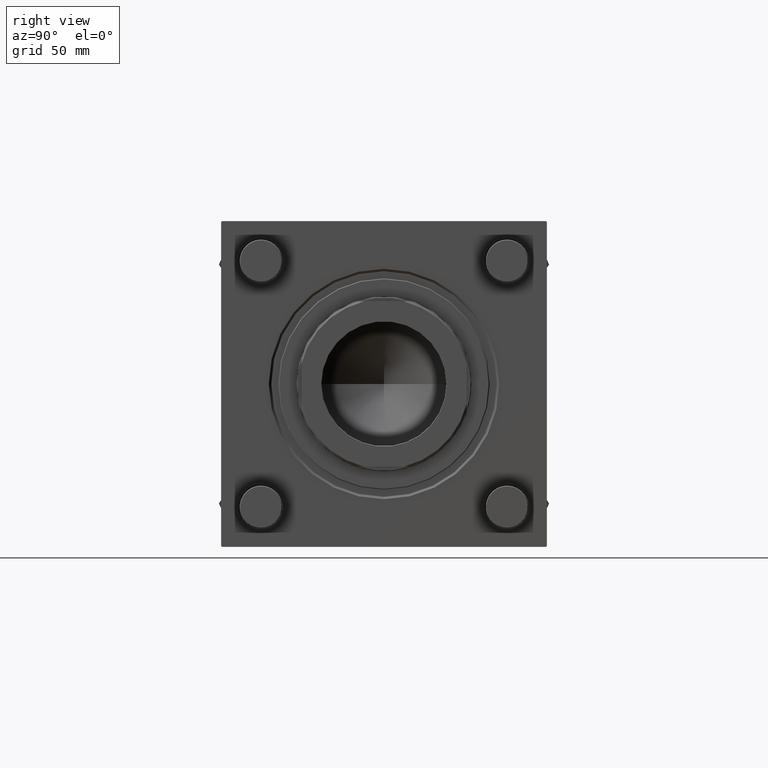
[diagram: clean part render]
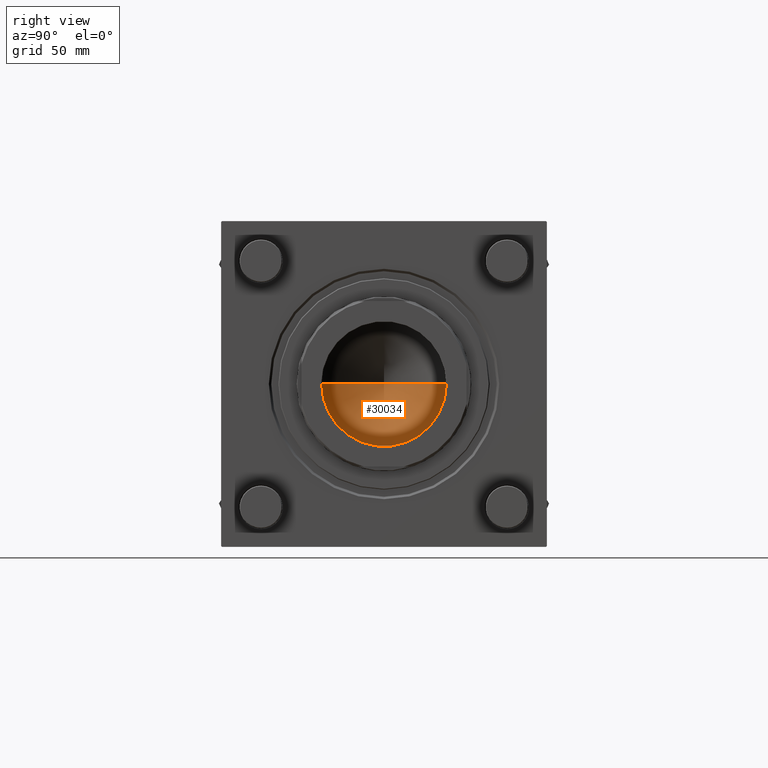
[diagram: same view with one face highlighted and labeled with its STEP entity id]
A machine part, right view. The second image highlights one B-rep face of the part: STEP entity #30034.
In plain terms, the highlighted conical surface has half-angle 59 deg.
Its self-contained STEP definition (entity closure, byte-faithful):
#309 = DIRECTION ( 'NONE',  ( 0.8571673007021116675, 0.000000000000000000, 0.5150380749100552658 ) ) ;
#1890 = EDGE_CURVE ( 'NONE', #41363, #44956, #37327, .T. ) ;
#8128 = LINE ( 'NONE', #56772, #35244 ) ;
#10619 = EDGE_LOOP ( 'NONE', ( #24025, #52301, #37120 ) ) ;
#13492 = CARTESIAN_POINT ( 'NONE',  ( 0.000000000000000000, 0.000000000000000000, 104.9999999999999858 ) ) ;
#18690 = DIRECTION ( 'NONE',  ( 1.000000000000000000, 0.000000000000000000, 0.000000000000000000 ) ) ;
#20764 = CARTESIAN_POINT ( 'NONE',  ( -39.24999999999998579, 4.806738686653360087E-15, 104.9999999999999858 ) ) ;
#24025 = ORIENTED_EDGE ( 'NONE', *, *, #1890, .F. ) ;
#27901 = CARTESIAN_POINT ( 'NONE',  ( 39.24999999999998579, 0.000000000000000000, 104.9999999999999858 ) ) ;
#29269 = EDGE_CURVE ( 'NONE', #50003, #44956, #43280, .T. ) ;
#29422 = AXIS2_PLACEMENT_3D ( 'NONE', #13492, #49124, #48845 ) ;
#30034 = ADVANCED_FACE ( 'NONE', ( #53183 ), #38550, .F. ) ;
#35244 = VECTOR ( 'NONE', #309, 1000.000000000000000 ) ;
#36090 = CARTESIAN_POINT ( 'NONE',  ( 0.000000000000000000, 0.000000000000000000, 104.9999999999999858 ) ) ;
#36489 = CARTESIAN_POINT ( 'NONE',  ( -39.24999999999998579, 4.806738686653360087E-15, 104.9999999999999858 ) ) ;
#37120 = ORIENTED_EDGE ( 'NONE', *, *, #29269, .T. ) ;
#37327 = LINE ( 'NONE', #36489, #44601 ) ;
#38550 = CONICAL_SURFACE ( 'NONE', #29422, 39.24999999999998579, 1.029744258676653201 ) ;
#41292 = DIRECTION ( 'NONE',  ( -0.000000000000000000, -0.000000000000000000, 1.000000000000000000 ) ) ;
#41363 = VERTEX_POINT ( 'NONE', #49231 ) ;
#43280 = CIRCLE ( 'NONE', #53439, 39.24999999999998579 ) ;
#44601 = VECTOR ( 'NONE', #45738, 1000.000000000000000 ) ;
#44956 = VERTEX_POINT ( 'NONE', #20764 ) ;
#45738 = DIRECTION ( 'NONE',  ( -0.8571673007021116675, 1.049727191138617833E-16, 0.5150380749100552658 ) ) ;
#48106 = EDGE_CURVE ( 'NONE', #41363, #50003, #8128, .T. ) ;
#48845 = DIRECTION ( 'NONE',  ( 1.000000000000000000, 0.000000000000000000, 0.000000000000000000 ) ) ;
#49124 = DIRECTION ( 'NONE',  ( -0.000000000000000000, -0.000000000000000000, 1.000000000000000000 ) ) ;
#49231 = CARTESIAN_POINT ( 'NONE',  ( -3.318838890392715616E-14, 0.000000000000000000, 81.41622070316820725 ) ) ;
#50003 = VERTEX_POINT ( 'NONE', #27901 ) ;
#52301 = ORIENTED_EDGE ( 'NONE', *, *, #48106, .T. ) ;
#53183 = FACE_OUTER_BOUND ( 'NONE', #10619, .T. ) ;
#53439 = AXIS2_PLACEMENT_3D ( 'NONE', #36090, #41292, #18690 ) ;
#56772 = CARTESIAN_POINT ( 'NONE',  ( 39.24999999999998579, 0.000000000000000000, 104.9999999999999858 ) ) ;